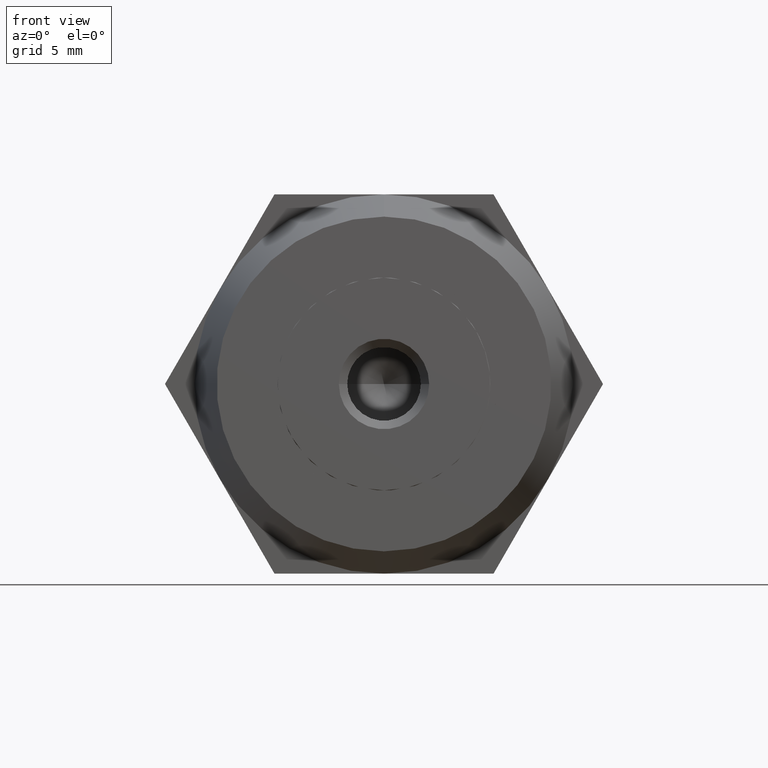
[diagram: clean part render]
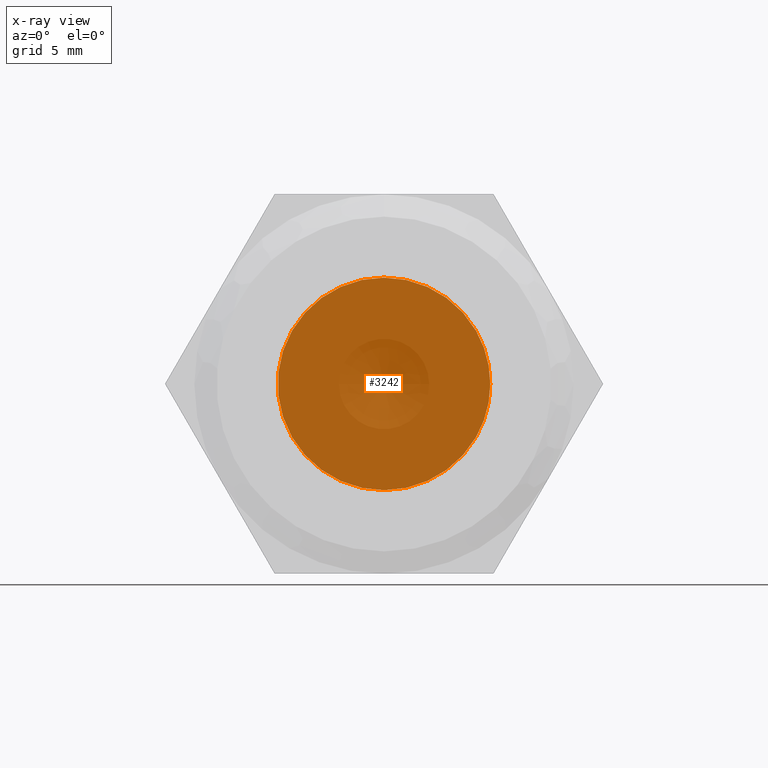
[diagram: x-ray — body ghosted, one internal face saturated and labeled with its STEP entity id]
A machine part, front view, then the same camera in x-ray: the body is ghosted and one INTERNAL B-rep face — a face not visible from any outside direction — is saturated and labeled: STEP entity #3242.
In plain terms, the highlighted planar face has unit normal (0, 1, 0).
Its self-contained STEP definition (entity closure, byte-faithful):
#54 = AXIS2_PLACEMENT_3D ( 'NONE', #464, #1641, #2547 ) ;
#74 = VERTEX_POINT ( 'NONE', #265 ) ;
#91 = DIRECTION ( 'NONE',  ( -0.0000000000000000000, -1.000000000000000000, -0.0000000000000000000 ) ) ;
#136 = EDGE_CURVE ( 'NONE', #1654, #3126, #2884, .T. ) ;
#265 = CARTESIAN_POINT ( 'NONE',  ( 4.124445985523424300, 3.509999999999390500, -2.381249999999965000 ) ) ;
#464 = CARTESIAN_POINT ( 'NONE',  ( 0.0000000000000000000, 3.510000000000000200, 0.0000000000000000000 ) ) ;
#472 = CIRCLE ( 'NONE', #54, 4.762500000000000200 ) ;
#612 = CARTESIAN_POINT ( 'NONE',  ( 0.0000000000000000000, 3.510000000000000200, 0.0000000000000000000 ) ) ;
#618 = CIRCLE ( 'NONE', #3248, 4.762500000000000200 ) ;
#659 = DIRECTION ( 'NONE',  ( 1.000000000000000000, 0.0000000000000000000, -3.552713678800500900E-015 ) ) ;
#691 = DIRECTION ( 'NONE',  ( 1.000000000000000000, 0.0000000000000000000, 1.776356839400250500E-015 ) ) ;
#766 = CIRCLE ( 'NONE', #3382, 4.762500000000000200 ) ;
#792 = CARTESIAN_POINT ( 'NONE',  ( 4.762500000000000200, 3.510000000000000200, 0.0000000000000000000 ) ) ;
#835 = AXIS2_PLACEMENT_3D ( 'NONE', #3538, #1428, #3562 ) ;
#940 = VERTEX_POINT ( 'NONE', #2501 ) ;
#988 = EDGE_CURVE ( 'NONE', #2348, #74, #2733, .T. ) ;
#1193 = AXIS2_PLACEMENT_3D ( 'NONE', #3358, #3042, #691 ) ;
#1198 = ORIENTED_EDGE ( 'NONE', *, *, #2462, .F. ) ;
#1349 = CARTESIAN_POINT ( 'NONE',  ( 0.0000000000000000000, 3.510000000000000200, 0.0000000000000000000 ) ) ;
#1383 = DIRECTION ( 'NONE',  ( 1.000000000000000000, 0.0000000000000000000, 0.0000000000000000000 ) ) ;
#1428 = DIRECTION ( 'NONE',  ( -0.0000000000000000000, -1.000000000000000000, -0.0000000000000000000 ) ) ;
#1501 = AXIS2_PLACEMENT_3D ( 'NONE', #1767, #3001, #2952 ) ;
#1641 = DIRECTION ( 'NONE',  ( -0.0000000000000000000, -1.000000000000000000, -0.0000000000000000000 ) ) ;
#1654 = VERTEX_POINT ( 'NONE', #792 ) ;
#1767 = CARTESIAN_POINT ( 'NONE',  ( 0.0000000000000000000, 3.510000000000000200, 0.0000000000000000000 ) ) ;
#1776 = CIRCLE ( 'NONE', #835, 4.762500000000000200 ) ;
#1874 = DIRECTION ( 'NONE',  ( -0.0000000000000000000, -1.000000000000000000, -0.0000000000000000000 ) ) ;
#1914 = ORIENTED_EDGE ( 'NONE', *, *, #988, .F. ) ;
#2060 = EDGE_CURVE ( 'NONE', #2991, #940, #472, .T. ) ;
#2126 = AXIS2_PLACEMENT_3D ( 'NONE', #1349, #3416, #1383 ) ;
#2348 = VERTEX_POINT ( 'NONE', #3565 ) ;
#2400 = FACE_OUTER_BOUND ( 'NONE', #2479, .T. ) ;
#2441 = CARTESIAN_POINT ( 'NONE',  ( 0.0000000000000000000, 3.510000000000000200, 0.0000000000000000000 ) ) ;
#2462 = EDGE_CURVE ( 'NONE', #940, #2348, #3722, .T. ) ;
#2479 = EDGE_LOOP ( 'NONE', ( #2959, #1914, #1198, #3673, #3623, #2885, #3336 ) ) ;
#2501 = CARTESIAN_POINT ( 'NONE',  ( -4.124445985523409200, 3.509999999999425100, -2.381250000000065400 ) ) ;
#2528 = PLANE ( 'NONE',  #2126 ) ;
#2547 = DIRECTION ( 'NONE',  ( 1.000000000000000000, 0.0000000000000000000, -1.776356839400250500E-015 ) ) ;
#2614 = EDGE_CURVE ( 'NONE', #74, #1654, #766, .T. ) ;
#2733 = CIRCLE ( 'NONE', #1193, 4.762500000000000200 ) ;
#2780 = CARTESIAN_POINT ( 'NONE',  ( 0.0000000000000000000, 3.510000000000000200, 0.0000000000000000000 ) ) ;
#2799 = DIRECTION ( 'NONE',  ( 1.000000000000000000, 0.0000000000000000000, 0.0000000000000000000 ) ) ;
#2803 = CARTESIAN_POINT ( 'NONE',  ( 4.124445985523419900, 3.510000000000000200, 2.381250000000000100 ) ) ;
#2884 = CIRCLE ( 'NONE', #3460, 4.762500000000000200 ) ;
#2885 = ORIENTED_EDGE ( 'NONE', *, *, #2914, .F. ) ;
#2914 = EDGE_CURVE ( 'NONE', #3126, #3743, #1776, .T. ) ;
#2952 = DIRECTION ( 'NONE',  ( 1.000000000000000000, 0.0000000000000000000, 0.0000000000000000000 ) ) ;
#2959 = ORIENTED_EDGE ( 'NONE', *, *, #2614, .F. ) ;
#2991 = VERTEX_POINT ( 'NONE', #3335 ) ;
#3001 = DIRECTION ( 'NONE',  ( -0.0000000000000000000, -1.000000000000000000, -0.0000000000000000000 ) ) ;
#3042 = DIRECTION ( 'NONE',  ( -0.0000000000000000000, -1.000000000000000000, -0.0000000000000000000 ) ) ;
#3126 = VERTEX_POINT ( 'NONE', #2803 ) ;
#3242 = ADVANCED_FACE ( 'NONE', ( #2400 ), #2528, .T. ) ;
#3248 = AXIS2_PLACEMENT_3D ( 'NONE', #612, #3369, #2799 ) ;
#3335 = CARTESIAN_POINT ( 'NONE',  ( -4.124445985523444800, 3.509999999999425100, 2.381250000000000100 ) ) ;
#3336 = ORIENTED_EDGE ( 'NONE', *, *, #136, .F. ) ;
#3358 = CARTESIAN_POINT ( 'NONE',  ( 0.0000000000000000000, 3.510000000000000200, 0.0000000000000000000 ) ) ;
#3369 = DIRECTION ( 'NONE',  ( -0.0000000000000000000, -1.000000000000000000, -0.0000000000000000000 ) ) ;
#3382 = AXIS2_PLACEMENT_3D ( 'NONE', #2441, #91, #659 ) ;
#3416 = DIRECTION ( 'NONE',  ( -0.0000000000000000000, 1.000000000000000000, 0.0000000000000000000 ) ) ;
#3460 = AXIS2_PLACEMENT_3D ( 'NONE', #2780, #1874, #3688 ) ;
#3503 = EDGE_CURVE ( 'NONE', #3743, #2991, #618, .T. ) ;
#3538 = CARTESIAN_POINT ( 'NONE',  ( 0.0000000000000000000, 3.510000000000000200, 0.0000000000000000000 ) ) ;
#3562 = DIRECTION ( 'NONE',  ( 1.000000000000000000, 0.0000000000000000000, 0.0000000000000000000 ) ) ;
#3565 = CARTESIAN_POINT ( 'NONE',  ( 0.0000000000000000000, 3.510000000000000200, -4.762500000000000200 ) ) ;
#3623 = ORIENTED_EDGE ( 'NONE', *, *, #3503, .F. ) ;
#3656 = CARTESIAN_POINT ( 'NONE',  ( -6.938893903907230000E-015, 3.510000000000000200, 4.762500000000000200 ) ) ;
#3673 = ORIENTED_EDGE ( 'NONE', *, *, #2060, .F. ) ;
#3688 = DIRECTION ( 'NONE',  ( 1.000000000000000000, 0.0000000000000000000, 0.0000000000000000000 ) ) ;
#3722 = CIRCLE ( 'NONE', #1501, 4.762500000000000200 ) ;
#3743 = VERTEX_POINT ( 'NONE', #3656 ) ;